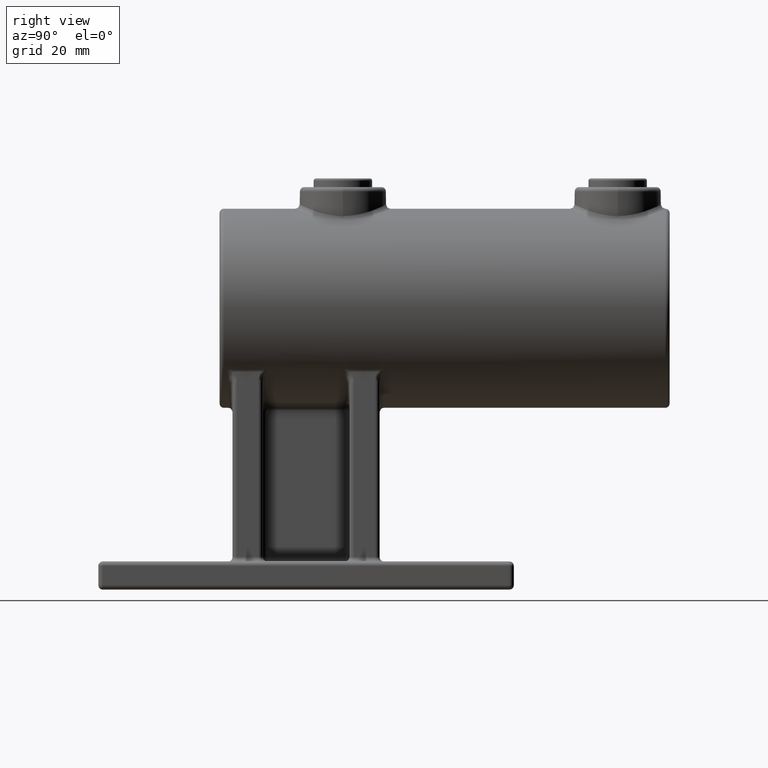
[diagram: clean part render]
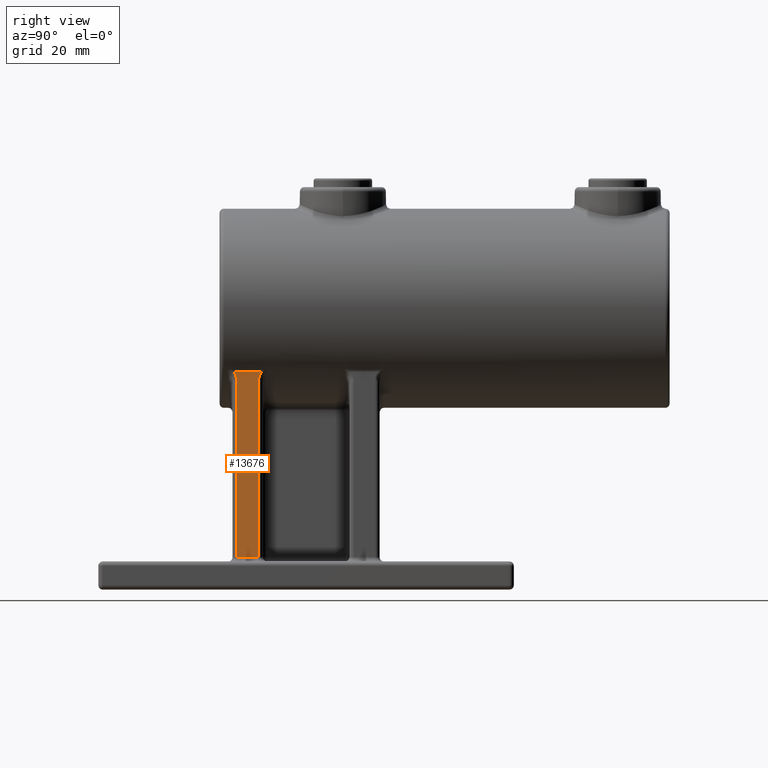
[diagram: same view with one face highlighted and labeled with its STEP entity id]
A machine part, right view. The second image highlights one B-rep face of the part: STEP entity #13676.
In plain terms, the highlighted planar face has unit normal (-1, 0, 0).
Its self-contained STEP definition (entity closure, byte-faithful):
#271 = VERTEX_POINT ( 'NONE', #15195 ) ;
#488 = CARTESIAN_POINT ( 'NONE',  ( 18.00000000000000000, -16.00000000000000000, 7.499999999993178790 ) ) ;
#881 = CARTESIAN_POINT ( 'NONE',  ( 18.00000000000000000, -16.31671899260534886, 49.64236479841293459 ) ) ;
#1227 = CARTESIAN_POINT ( 'NONE',  ( 18.00000000000000000, -16.00000000000000000, 48.05892565390258397 ) ) ;
#1495 = CARTESIAN_POINT ( 'NONE',  ( 18.00000000000000000, -11.00000000000000355, 7.499999999993178790 ) ) ;
#1696 = ORIENTED_EDGE ( 'NONE', *, *, #6227, .T. ) ;
#1906 = CARTESIAN_POINT ( 'NONE',  ( 18.00000000000000000, -16.00000000000000000, 48.05892565390258397 ) ) ;
#2115 = CARTESIAN_POINT ( 'NONE',  ( 18.00000000000000000, -16.73614581896382703, 50.33712170137505382 ) ) ;
#2246 = VERTEX_POINT ( 'NONE', #6293 ) ;
#2398 = DIRECTION ( 'NONE',  ( 0.000000000000000000, 0.000000000000000000, -1.000000000000000000 ) ) ;
#2572 = LINE ( 'NONE', #3732, #5455 ) ;
#2835 = CARTESIAN_POINT ( 'NONE',  ( 18.00000000000000000, -11.00000000000000355, 48.05892565390257687 ) ) ;
#3244 = EDGE_LOOP ( 'NONE', ( #8938, #15205, #11921, #4011, #1696, #9839 ) ) ;
#3281 = CARTESIAN_POINT ( 'NONE',  ( 18.00000000000000000, -16.00000000000000355, 48.46875099457403024 ) ) ;
#3314 = DIRECTION ( 'NONE',  ( 0.000000000000000000, -1.000000000000000000, 0.000000000000000000 ) ) ;
#3721 = VERTEX_POINT ( 'NONE', #488 ) ;
#3732 = CARTESIAN_POINT ( 'NONE',  ( 18.00000000000000000, -16.00000000000000000, 500000.0000000000582 ) ) ;
#4011 = ORIENTED_EDGE ( 'NONE', *, *, #7251, .T. ) ;
#4015 = CARTESIAN_POINT ( 'NONE',  ( 18.00000000000000000, -10.94013548671567371, 48.86823287867185428 ) ) ;
#4108 = CARTESIAN_POINT ( 'NONE',  ( 18.00000000000000355, -10.68298884761354550, 49.64299756432696142 ) ) ;
#4299 = VECTOR ( 'NONE', #3314, 1000.000000000000000 ) ;
#4388 = EDGE_CURVE ( 'NONE', #271, #15493, #13379, .T. ) ;
#4393 = CARTESIAN_POINT ( 'NONE',  ( 18.00000000000000000, -10.26385418103616232, 50.33712170137505382 ) ) ;
#4649 = CARTESIAN_POINT ( 'NONE',  ( 18.00000000000000000, -10.00000000000000178, 50.33712170137505382 ) ) ;
#4701 = EDGE_CURVE ( 'NONE', #2246, #12009, #9757, .T. ) ;
#4996 = CARTESIAN_POINT ( 'NONE',  ( 18.00000000000000000, -10.00000000000000178, 500000.0000000000582 ) ) ;
#5199 = CARTESIAN_POINT ( 'NONE',  ( 18.00000000000000355, -10.49978335049094369, 50.00438911360073746 ) ) ;
#5350 = CARTESIAN_POINT ( 'NONE',  ( 18.00000000000000000, -10.26385418103616232, 50.33712170137505382 ) ) ;
#5455 = VECTOR ( 'NONE', #2398, 1000.000000000000000 ) ;
#5477 = LINE ( 'NONE', #6365, #13961 ) ;
#6227 = EDGE_CURVE ( 'NONE', #8591, #2246, #14554, .T. ) ;
#6234 = LINE ( 'NONE', #4649, #4299 ) ;
#6239 = DIRECTION ( 'NONE',  ( 0.000000000000000000, 0.000000000000000000, 1.000000000000000000 ) ) ;
#6293 = CARTESIAN_POINT ( 'NONE',  ( 18.00000000000000000, -11.00000000000000355, 48.05892565390257687 ) ) ;
#6365 = CARTESIAN_POINT ( 'NONE',  ( 18.00000000000000000, -10.00000000000000178, 7.499999999993178790 ) ) ;
#6411 = DIRECTION ( 'NONE',  ( 0.000000000000000000, 1.000000000000000000, 0.000000000000000000 ) ) ;
#6887 = CARTESIAN_POINT ( 'NONE',  ( 18.00000000000000000, -16.24048684668201048, 49.45083654823824304 ) ) ;
#7251 = EDGE_CURVE ( 'NONE', #3721, #8591, #5477, .T. ) ;
#7630 = CARTESIAN_POINT ( 'NONE',  ( 18.00000000000000000, -11.00000000000000355, 500000.0000000000582 ) ) ;
#8591 = VERTEX_POINT ( 'NONE', #1495 ) ;
#8930 = DIRECTION ( 'NONE',  ( -0.000000000000000000, -0.000000000000000000, 1.000000000000000000 ) ) ;
#8938 = ORIENTED_EDGE ( 'NONE', *, *, #12782, .T. ) ;
#9757 = B_SPLINE_CURVE_WITH_KNOTS ( 'NONE', 3,
 ( #2835, #11493, #4015, #12588, #4108, #5199, #13804, #5350 ),
 .UNSPECIFIED., .F., .F.,
 ( 4, 2, 2, 4 ),
 ( 0.000000000000000000, 0.001211762969223944067, 0.001817644453835915016, 0.002423525938447886399 ),
 .UNSPECIFIED. ) ;
#9823 = FACE_OUTER_BOUND ( 'NONE', #3244, .T. ) ;
#9839 = ORIENTED_EDGE ( 'NONE', *, *, #4701, .T. ) ;
#9843 = EDGE_CURVE ( 'NONE', #15493, #3721, #2572, .T. ) ;
#10539 = CARTESIAN_POINT ( 'NONE',  ( 18.00000000000000355, -16.05988834133386334, 48.86799810653278087 ) ) ;
#11493 = CARTESIAN_POINT ( 'NONE',  ( 18.00000000000000000, -10.99999999999999645, 48.46868830133676198 ) ) ;
#11921 = ORIENTED_EDGE ( 'NONE', *, *, #9843, .T. ) ;
#12009 = VERTEX_POINT ( 'NONE', #4393 ) ;
#12397 = PLANE ( 'NONE',  #13750 ) ;
#12588 = CARTESIAN_POINT ( 'NONE',  ( 17.99999999999999645, -10.75911090148147231, 49.45197837925854856 ) ) ;
#12782 = EDGE_CURVE ( 'NONE', #12009, #271, #6234, .T. ) ;
#13379 = B_SPLINE_CURVE_WITH_KNOTS ( 'NONE', 3,
 ( #2115, #15567, #14367, #881, #6887, #10539, #3281, #1906 ),
 .UNSPECIFIED., .F., .F.,
 ( 4, 2, 2, 4 ),
 ( 3.338826740128846286E-15, 0.0006082084231064695127, 0.001216416846209600333, 0.002432833692415861757 ),
 .UNSPECIFIED. ) ;
#13618 = DIRECTION ( 'NONE',  ( -1.000000000000000000, 0.000000000000000000, 0.000000000000000000 ) ) ;
#13676 = ADVANCED_FACE ( 'NONE', ( #9823 ), #12397, .F. ) ;
#13750 = AXIS2_PLACEMENT_3D ( 'NONE', #4996, #13618, #6239 ) ;
#13804 = CARTESIAN_POINT ( 'NONE',  ( 17.99999999999999645, -10.39247870545163899, 50.17654982178783030 ) ) ;
#13961 = VECTOR ( 'NONE', #6411, 1000.000000000000000 ) ;
#14367 = CARTESIAN_POINT ( 'NONE',  ( 18.00000000000000000, -16.50012886709588145, 50.00427228793456891 ) ) ;
#14554 = LINE ( 'NONE', #7630, #14741 ) ;
#14741 = VECTOR ( 'NONE', #8930, 1000.000000000000000 ) ;
#15195 = CARTESIAN_POINT ( 'NONE',  ( 18.00000000000000000, -16.73614581896382703, 50.33712170137505382 ) ) ;
#15205 = ORIENTED_EDGE ( 'NONE', *, *, #4388, .T. ) ;
#15493 = VERTEX_POINT ( 'NONE', #1227 ) ;
#15567 = CARTESIAN_POINT ( 'NONE',  ( 18.00000000000000355, -16.60752743626964545, 50.17655748897045243 ) ) ;